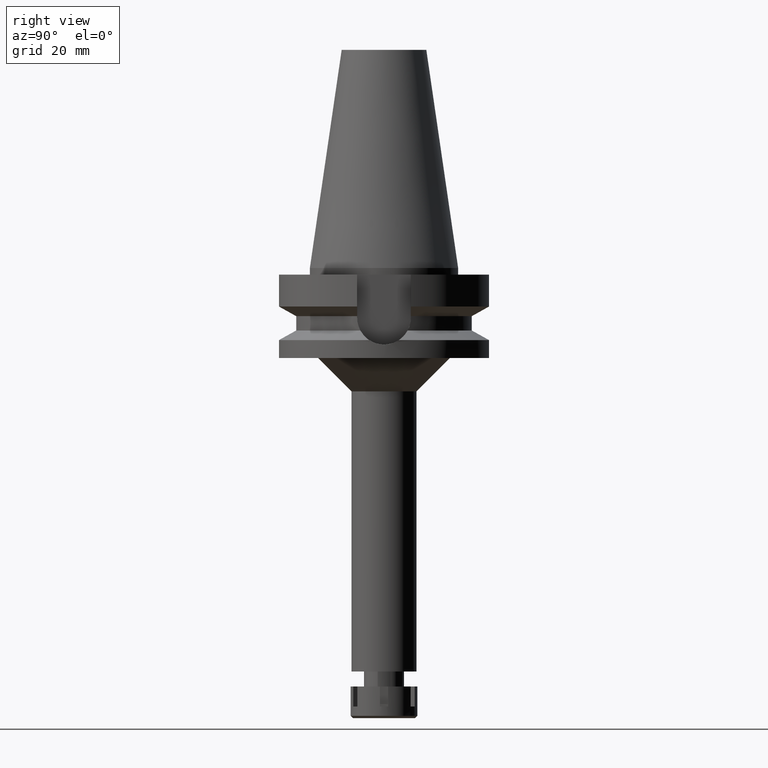
[diagram: clean part render]
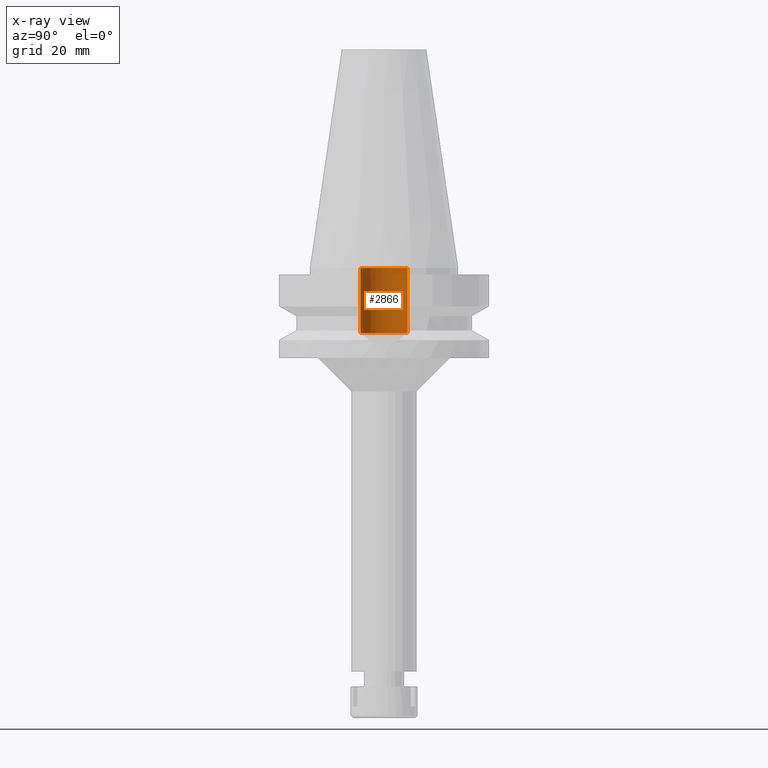
[diagram: x-ray — body ghosted, one internal face saturated and labeled with its STEP entity id]
A machine part, right view, then the same camera in x-ray: the body is ghosted and one INTERNAL B-rep face — a face not visible from any outside direction — is saturated and labeled: STEP entity #2866.
In plain terms, the highlighted cylindrical surface (edge-blend (fillet) strip) has radius 7.1 mm, axis along (0, 0, -1).
Its self-contained STEP definition (entity closure, byte-faithful):
#17 = VECTOR ( 'NONE', #1552, 1000.000000000000000 ) ;
#45 = DIRECTION ( 'NONE',  ( 0.0000000000000000000, -1.000000000000000000, 0.0000000000000000000 ) ) ;
#110 = LINE ( 'NONE', #2391, #17 ) ;
#130 = DIRECTION ( 'NONE',  ( 0.0000000000000000000, 0.0000000000000000000, -1.000000000000000000 ) ) ;
#188 = FACE_OUTER_BOUND ( 'NONE', #3619, .T. ) ;
#231 = VERTEX_POINT ( 'NONE', #2402 ) ;
#348 = AXIS2_PLACEMENT_3D ( 'NONE', #517, #3341, #3360 ) ;
#369 = AXIS2_PLACEMENT_3D ( 'NONE', #890, #3101, #45 ) ;
#517 = CARTESIAN_POINT ( 'NONE',  ( 0.0000000000000000000, 2.145213798065999842E-14, -5.684341886080998387E-14 ) ) ;
#557 = EDGE_CURVE ( 'NONE', #920, #3075, #2860, .T. ) ;
#873 = ORIENTED_EDGE ( 'NONE', *, *, #557, .T. ) ;
#890 = CARTESIAN_POINT ( 'NONE',  ( 0.0000000000000000000, 2.145213798065999842E-14, -19.59999999999999787 ) ) ;
#920 = VERTEX_POINT ( 'NONE', #2149 ) ;
#953 = EDGE_CURVE ( 'NONE', #920, #993, #110, .T. ) ;
#993 = VERTEX_POINT ( 'NONE', #2953 ) ;
#1111 = VECTOR ( 'NONE', #3211, 1000.000000000000000 ) ;
#1318 = DIRECTION ( 'NONE',  ( 0.0000000000000000000, -1.000000000000000000, 0.0000000000000000000 ) ) ;
#1491 = CARTESIAN_POINT ( 'NONE',  ( 0.0000000000000000000, 7.100000000000000533, -19.59999999999999787 ) ) ;
#1552 = DIRECTION ( 'NONE',  ( 0.0000000000000000000, 0.0000000000000000000, 1.000000000000000000 ) ) ;
#1818 = EDGE_CURVE ( 'NONE', #993, #231, #1946, .T. ) ;
#1946 = CIRCLE ( 'NONE', #348, 7.100000000000000533 ) ;
#2149 = CARTESIAN_POINT ( 'NONE',  ( 0.0000000000000000000, -7.100000000000000533, -19.59999999999999787 ) ) ;
#2367 = LINE ( 'NONE', #1491, #1111 ) ;
#2374 = CARTESIAN_POINT ( 'NONE',  ( 0.0000000000000000000, 7.100000000000000533, -19.59999999999999787 ) ) ;
#2391 = CARTESIAN_POINT ( 'NONE',  ( 0.0000000000000000000, -7.100000000000000533, -19.59999999999999787 ) ) ;
#2402 = CARTESIAN_POINT ( 'NONE',  ( 0.0000000000000000000, 7.100000000000000533, -5.684341886080998387E-14 ) ) ;
#2490 = ORIENTED_EDGE ( 'NONE', *, *, #1818, .F. ) ;
#2678 = CARTESIAN_POINT ( 'NONE',  ( 0.0000000000000000000, 2.145213798065999842E-14, 75.17000000000000171 ) ) ;
#2698 = ORIENTED_EDGE ( 'NONE', *, *, #3502, .T. ) ;
#2757 = CYLINDRICAL_SURFACE ( 'NONE', #3350, 7.100000000000000533 ) ;
#2860 = CIRCLE ( 'NONE', #369, 7.100000000000000533 ) ;
#2866 = ADVANCED_FACE ( 'NONE', ( #188 ), #2757, .F. ) ;
#2953 = CARTESIAN_POINT ( 'NONE',  ( 0.0000000000000000000, -7.100000000000000533, -5.684341886080998387E-14 ) ) ;
#3075 = VERTEX_POINT ( 'NONE', #2374 ) ;
#3101 = DIRECTION ( 'NONE',  ( 0.0000000000000000000, 0.0000000000000000000, -1.000000000000000000 ) ) ;
#3211 = DIRECTION ( 'NONE',  ( 0.0000000000000000000, 0.0000000000000000000, 1.000000000000000000 ) ) ;
#3252 = ORIENTED_EDGE ( 'NONE', *, *, #953, .F. ) ;
#3341 = DIRECTION ( 'NONE',  ( 0.0000000000000000000, 0.0000000000000000000, -1.000000000000000000 ) ) ;
#3350 = AXIS2_PLACEMENT_3D ( 'NONE', #2678, #130, #1318 ) ;
#3360 = DIRECTION ( 'NONE',  ( 0.0000000000000000000, -1.000000000000000000, 0.0000000000000000000 ) ) ;
#3502 = EDGE_CURVE ( 'NONE', #3075, #231, #2367, .T. ) ;
#3619 = EDGE_LOOP ( 'NONE', ( #2490, #3252, #873, #2698 ) ) ;